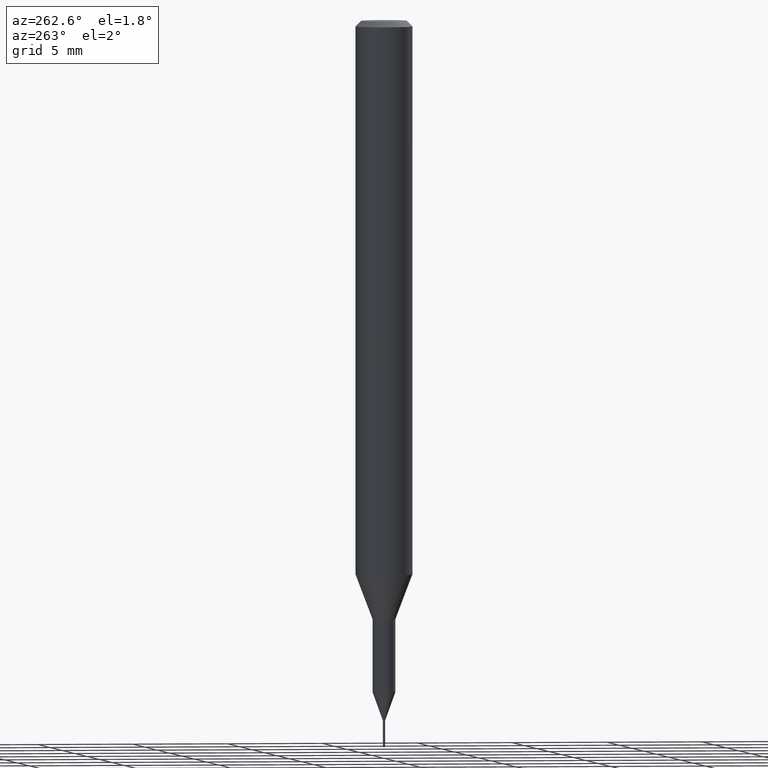
[diagram: clean part render]
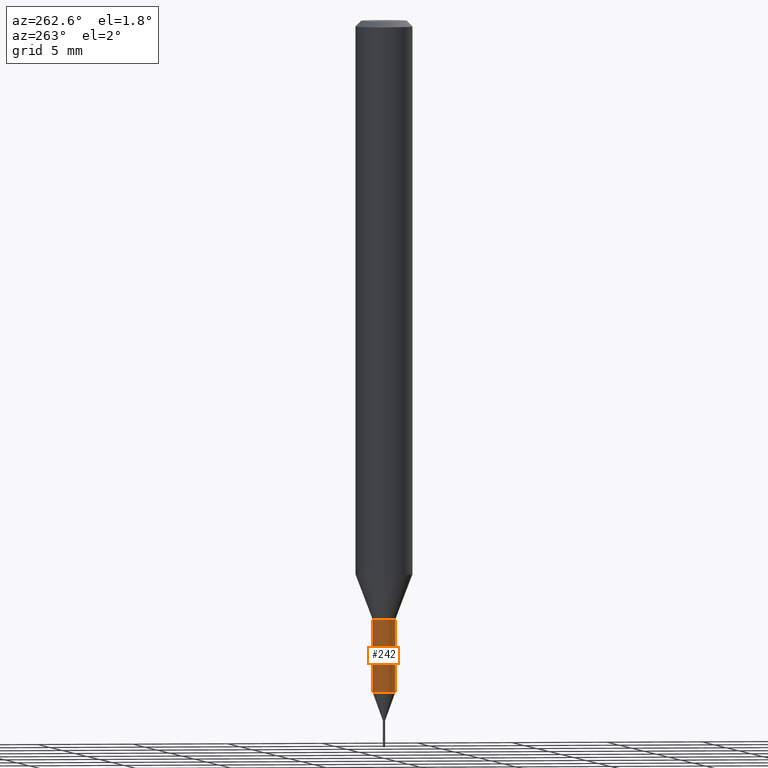
[diagram: same view with one face highlighted and labeled with its STEP entity id]
A machine part, auxiliary view. The second image highlights one B-rep face of the part: STEP entity #242.
In plain terms, the highlighted cylindrical surface (edge-blend (fillet) strip) has radius 0.5999 mm, axis along (-0, -0, 1).
Its self-contained STEP definition (entity closure, byte-faithful):
#136=VERTEX_POINT('',#318);
#140=VERTEX_POINT('',#322);
#166=EDGE_CURVE('',#178,#140,#350,.T.);
#178=VERTEX_POINT('',#363);
#204=EDGE_CURVE('',#136,#250,#396,.T.);
#234=EDGE_CURVE('',#250,#178,#428,.T.);
#238=EDGE_CURVE('',#136,#140,#432,.T.);
#242=ADVANCED_FACE('',(#436),#437,.T.);
#250=VERTEX_POINT('',#445);
#318=CARTESIAN_POINT('',(7.34702581975735E-017,-0.59995,-35.116));
#322=CARTESIAN_POINT('',(0.0,0.59995,-35.116));
#350=LINE('',#559,#560);
#363=CARTESIAN_POINT('',(0.0,0.59995,-31.3));
#396=LINE('',#618,#619);
#428=CIRCLE('',#663,0.59995);
#432=CIRCLE('',#668,0.59995);
#436=FACE_OUTER_BOUND('',#671,.T.);
#437=CYLINDRICAL_SURFACE('',#672,0.59995);
#445=CARTESIAN_POINT('',(7.34702581975735E-017,-0.59995,-31.3));
#559=CARTESIAN_POINT('',(-7.34702581975735E-017,0.59995,-33.208));
#560=VECTOR('',#779,1.0);
#618=CARTESIAN_POINT('',(7.34702581975735E-017,-0.59995,-33.208));
#619=VECTOR('',#859,1.0);
#663=AXIS2_PLACEMENT_3D('',#897,#898,#899);
#668=AXIS2_PLACEMENT_3D('',#900,#901,#902);
#671=EDGE_LOOP('',(#905,#906,#907,#908));
#672=AXIS2_PLACEMENT_3D('',#909,#910,#911);
#779=DIRECTION('',(0.0,0.0,-1.0));
#859=DIRECTION('',(-0.0,-0.0,1.0));
#897=CARTESIAN_POINT('',(0.0,0.0,-31.3));
#898=DIRECTION('',(0.0,0.0,-1.0));
#899=DIRECTION('',(0.0,1.0,0.0));
#900=CARTESIAN_POINT('',(0.0,0.0,-35.116));
#901=DIRECTION('',(0.0,0.0,-1.0));
#902=DIRECTION('',(0.0,1.0,0.0));
#905=ORIENTED_EDGE('',*,*,#166,.T.);
#906=ORIENTED_EDGE('',*,*,#238,.F.);
#907=ORIENTED_EDGE('',*,*,#204,.T.);
#908=ORIENTED_EDGE('',*,*,#234,.T.);
#909=CARTESIAN_POINT('',(0.0,0.0,-33.208));
#910=DIRECTION('',(-0.0,-0.0,1.0));
#911=DIRECTION('',(0.0,1.0,0.0));